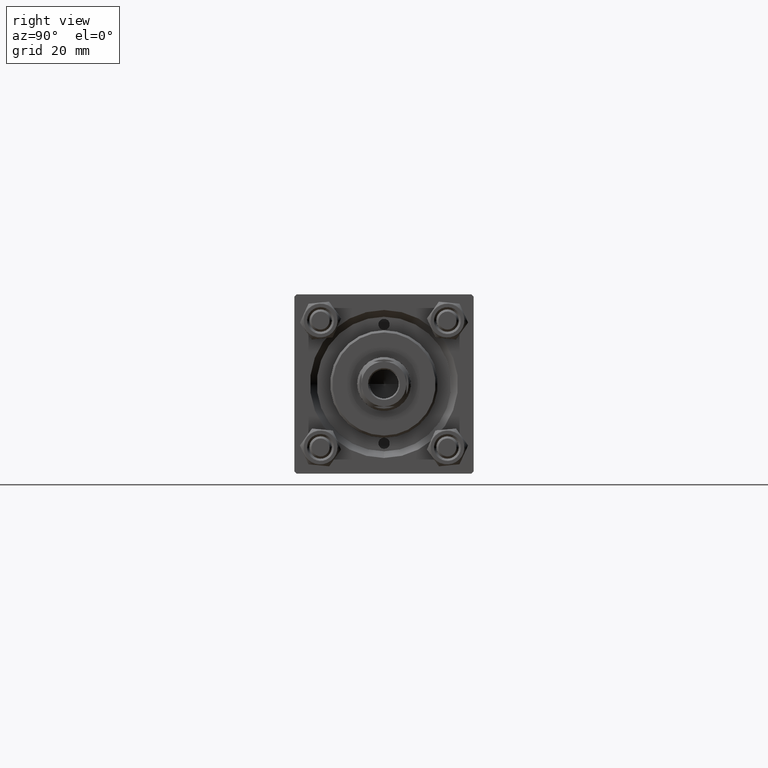
[diagram: clean part render]
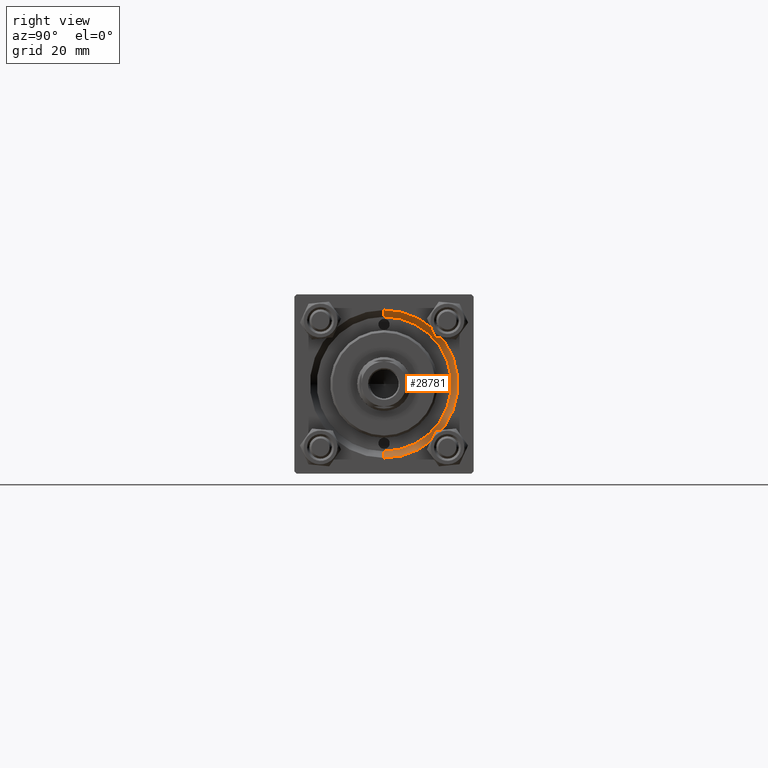
[diagram: same view with one face highlighted and labeled with its STEP entity id]
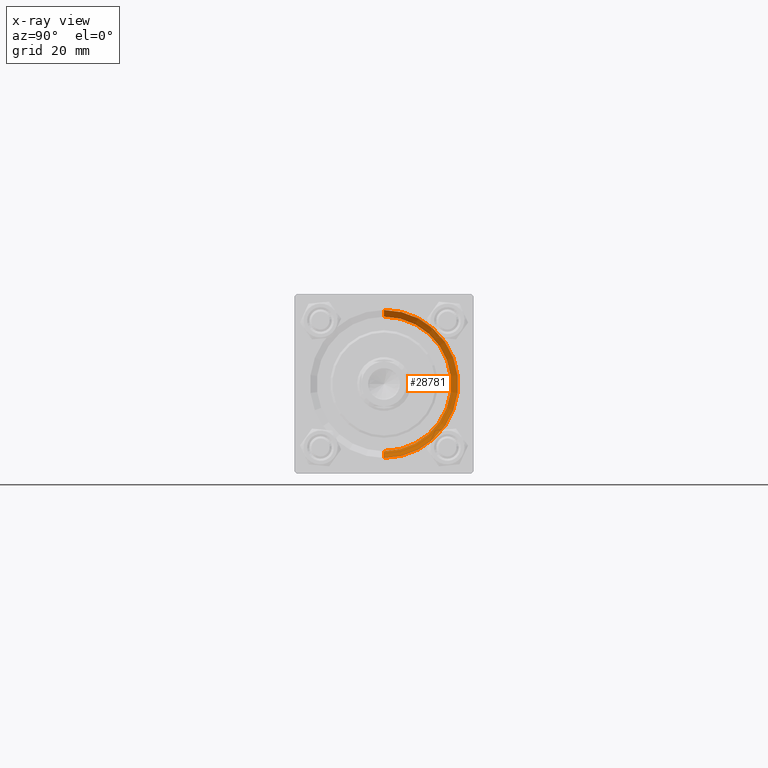
[diagram: x-ray of the same camera — body ghosted, the highlighted face saturated]
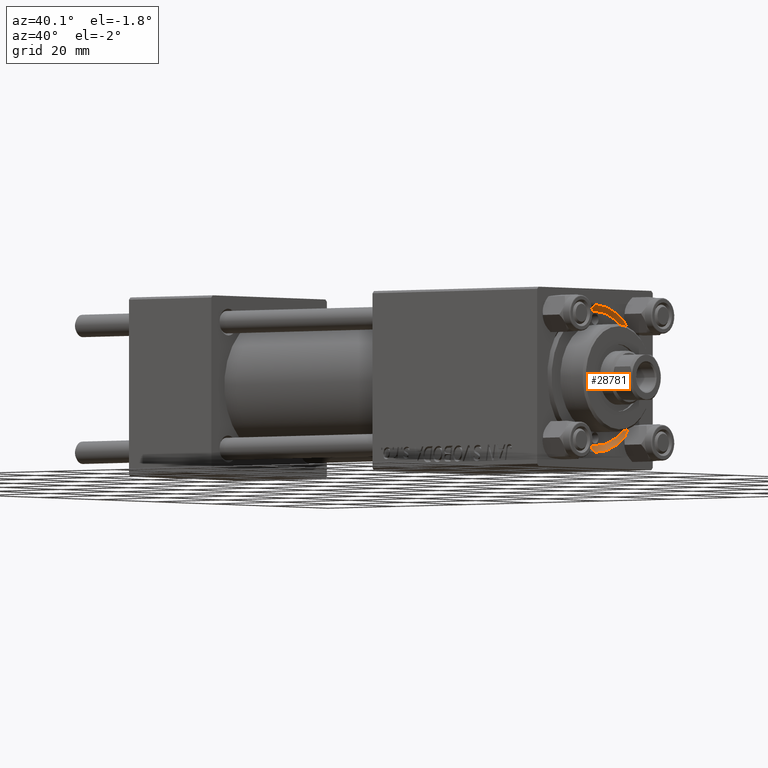
[diagram: same view with one face highlighted and labeled with its STEP entity id]
A machine part, right view. The second image highlights one B-rep face of the part: STEP entity #28781.
The next image is the same camera in x-ray: the body ghosted, the highlighted face saturated — about 0% of this face is hidden behind the body in this view.
A second angle (auxiliary view) of the same face is appended — the face is thin or edge-on in the first view.
In plain terms, the highlighted conical surface has half-angle 45 deg.
Its self-contained STEP definition (entity closure, byte-faithful):
#2501 = ORIENTED_EDGE ( 'NONE', *, *, #44966, .T. ) ;
#4022 = LINE ( 'NONE', #11854, #26806 ) ;
#8027 = CONICAL_SURFACE ( 'NONE', #14486, 15.00000000000000000, 0.7853981633974482790 ) ;
#9479 = CARTESIAN_POINT ( 'NONE',  ( 119.0000000000000142, 0.000000000000000000, 0.000000000000000000 ) ) ;
#9637 = ORIENTED_EDGE ( 'NONE', *, *, #38814, .F. ) ;
#11822 = EDGE_LOOP ( 'NONE', ( #9637, #43536, #2501, #46194 ) ) ;
#11854 = CARTESIAN_POINT ( 'NONE',  ( 117.5000000000000000, 1.836970198721029589E-15, 15.00000000000000000 ) ) ;
#12145 = CARTESIAN_POINT ( 'NONE',  ( 117.5000000000000000, 1.836970198721029589E-15, 15.00000000000000000 ) ) ;
#12806 = CARTESIAN_POINT ( 'NONE',  ( 119.0000000000000142, 2.020667218593134678E-15, 16.50000000000001421 ) ) ;
#14486 = AXIS2_PLACEMENT_3D ( 'NONE', #42242, #25858, #45300 ) ;
#14556 = EDGE_CURVE ( 'NONE', #30847, #22835, #24985, .T. ) ;
#16511 = VECTOR ( 'NONE', #27076, 1000.000000000000114 ) ;
#16814 = DIRECTION ( 'NONE',  ( 0.000000000000000000, 0.000000000000000000, 1.000000000000000000 ) ) ;
#21550 = CARTESIAN_POINT ( 'NONE',  ( 117.5000000000000000, 0.000000000000000000, 0.000000000000000000 ) ) ;
#21762 = AXIS2_PLACEMENT_3D ( 'NONE', #9479, #28190, #16814 ) ;
#22812 = FACE_OUTER_BOUND ( 'NONE', #11822, .T. ) ;
#22835 = VERTEX_POINT ( 'NONE', #49650 ) ;
#24985 = CIRCLE ( 'NONE', #21762, 16.50000000000001421 ) ;
#25858 = DIRECTION ( 'NONE',  ( 1.000000000000000000, 0.000000000000000000, 0.000000000000000000 ) ) ;
#26806 = VECTOR ( 'NONE', #38628, 1000.000000000000114 ) ;
#27076 = DIRECTION ( 'NONE',  ( 0.7071067811865474617, 0.000000000000000000, -0.7071067811865474617 ) ) ;
#28190 = DIRECTION ( 'NONE',  ( -1.000000000000000000, -0.000000000000000000, -0.000000000000000000 ) ) ;
#28781 = ADVANCED_FACE ( 'NONE', ( #22812 ), #8027, .F. ) ;
#30621 = CARTESIAN_POINT ( 'NONE',  ( 117.5000000000000000, 0.000000000000000000, -15.00000000000000000 ) ) ;
#30750 = CARTESIAN_POINT ( 'NONE',  ( 117.5000000000000000, 0.000000000000000000, -15.00000000000000000 ) ) ;
#30847 = VERTEX_POINT ( 'NONE', #12806 ) ;
#31649 = LINE ( 'NONE', #30621, #16511 ) ;
#33671 = EDGE_CURVE ( 'NONE', #36671, #43080, #47629, .T. ) ;
#33916 = DIRECTION ( 'NONE',  ( 0.000000000000000000, 0.000000000000000000, 1.000000000000000000 ) ) ;
#34161 = DIRECTION ( 'NONE',  ( 1.000000000000000000, 0.000000000000000000, 0.000000000000000000 ) ) ;
#34750 = AXIS2_PLACEMENT_3D ( 'NONE', #21550, #34161, #33916 ) ;
#36671 = VERTEX_POINT ( 'NONE', #30750 ) ;
#38628 = DIRECTION ( 'NONE',  ( 0.7071067811865474617, 8.659560562354932858E-17, 0.7071067811865474617 ) ) ;
#38814 = EDGE_CURVE ( 'NONE', #43080, #30847, #4022, .T. ) ;
#42242 = CARTESIAN_POINT ( 'NONE',  ( 117.5000000000000000, 0.000000000000000000, 0.000000000000000000 ) ) ;
#43080 = VERTEX_POINT ( 'NONE', #12145 ) ;
#43536 = ORIENTED_EDGE ( 'NONE', *, *, #33671, .F. ) ;
#44966 = EDGE_CURVE ( 'NONE', #36671, #22835, #31649, .T. ) ;
#45300 = DIRECTION ( 'NONE',  ( 0.000000000000000000, 0.000000000000000000, -1.000000000000000000 ) ) ;
#46194 = ORIENTED_EDGE ( 'NONE', *, *, #14556, .F. ) ;
#47629 = CIRCLE ( 'NONE', #34750, 15.00000000000000000 ) ;
#49650 = CARTESIAN_POINT ( 'NONE',  ( 119.0000000000000142, 0.000000000000000000, -16.50000000000001421 ) ) ;